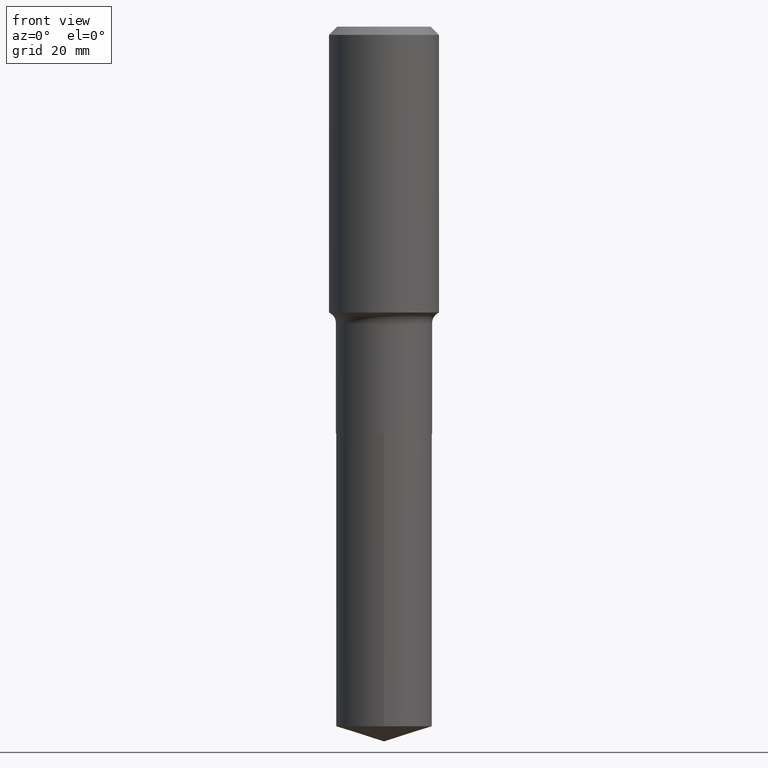
[diagram: clean part render]
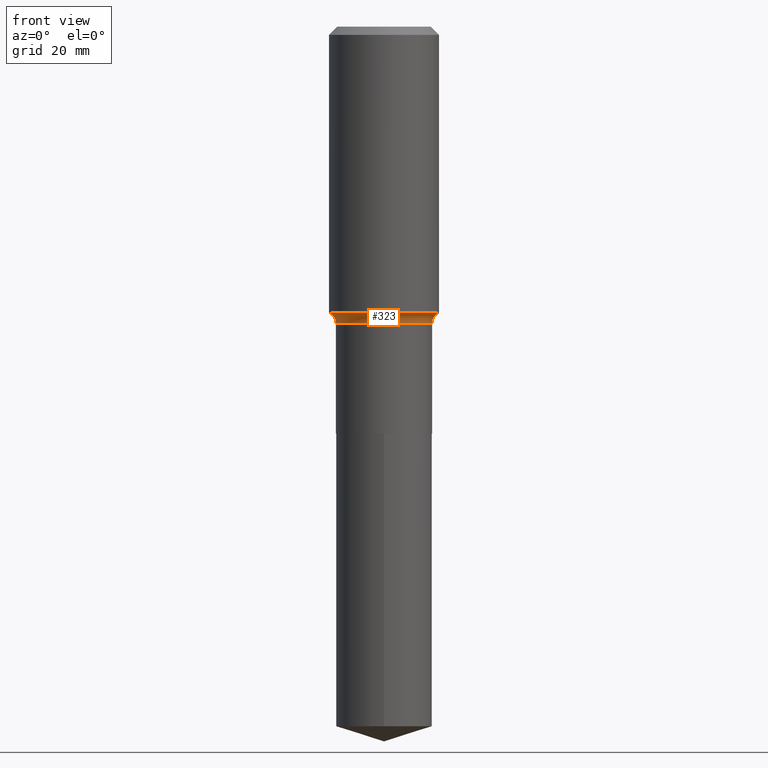
[diagram: same view with one face highlighted and labeled with its STEP entity id]
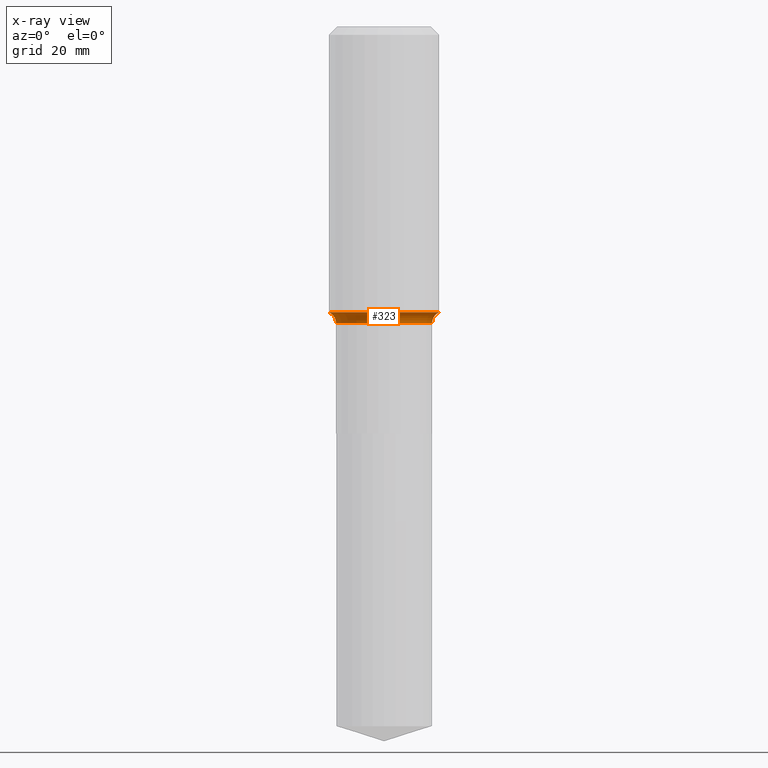
[diagram: x-ray of the same camera — body ghosted, the highlighted face saturated]
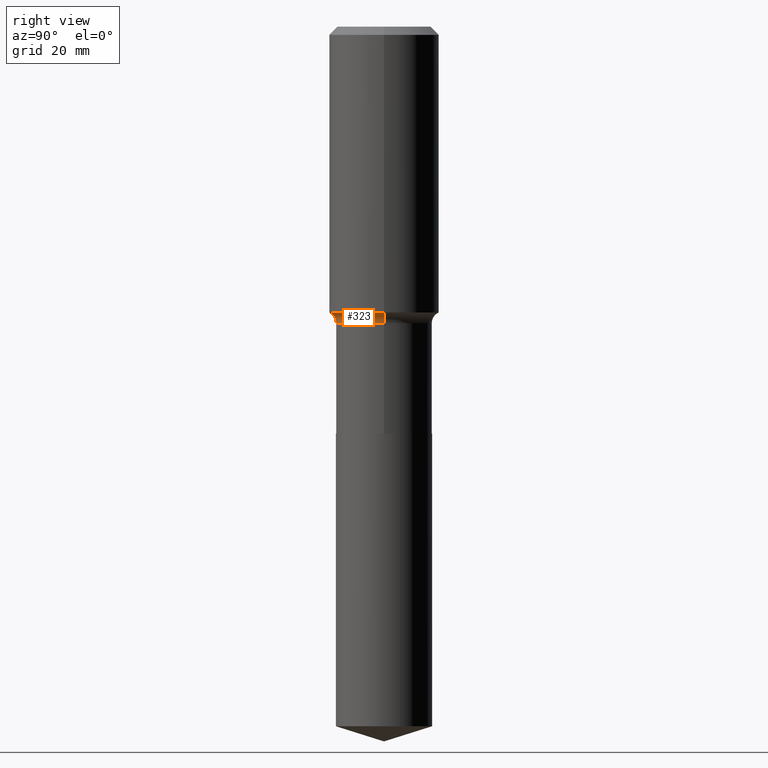
[diagram: same view with one face highlighted and labeled with its STEP entity id]
A machine part, front view. The second image highlights one B-rep face of the part: STEP entity #323.
The next image is the same camera in x-ray: the body ghosted, the highlighted face saturated — about 0% of this face is hidden behind the body in this view.
A second angle (right view) of the same face is appended — the face is thin or edge-on in the first view.
In plain terms, the highlighted toroidal blend (fillet) surface has major radius 10.3149 mm and minor (blend) radius 1.9812 mm.
Its self-contained STEP definition (entity closure, byte-faithful):
#2 = DIRECTION ( 'NONE',  ( -6.982962677686266711E-15, -1.000000000000000000, 3.491481338843145583E-15 ) ) ;
#7 = FACE_OUTER_BOUND ( 'NONE', #154, .T. ) ;
#17 = EDGE_CURVE ( 'NONE', #291, #328, #426, .T. ) ;
#34 = CARTESIAN_POINT ( 'NONE',  ( 4.943759738583870671E-29, -7.058378674605300908E-15, -2.021599999999999397 ) ) ;
#42 = CARTESIAN_POINT ( 'NONE',  ( -0.3750000000000002220, -4.144091675948292406E-15, -1.950068258793734799 ) ) ;
#46 = DIRECTION ( 'NONE',  ( 1.000000000000000000, -6.982962677686269077E-15, 0.000000000000000000 ) ) ;
#57 = AXIS2_PLACEMENT_3D ( 'NONE', #448, #334, #489 ) ;
#81 = DIRECTION ( 'NONE',  ( 1.000000000000000000, -6.982962677686269077E-15, 0.000000000000000000 ) ) ;
#88 = CARTESIAN_POINT ( 'NONE',  ( 0.4060999999999999610, -9.894159818013693857E-15, -2.021599999999999397 ) ) ;
#93 = AXIS2_PLACEMENT_3D ( 'NONE', #34, #200, #46 ) ;
#141 = CARTESIAN_POINT ( 'NONE',  ( -0.3280999999999998917, -6.043550997387220874E-15, -2.021599999999999397 ) ) ;
#142 = TOROIDAL_SURFACE ( 'NONE', #180, 0.4060999999999999610, 0.07800000000000006928 ) ;
#149 = ORIENTED_EDGE ( 'NONE', *, *, #466, .T. ) ;
#154 = EDGE_LOOP ( 'NONE', ( #160, #331, #149, #231 ) ) ;
#160 = ORIENTED_EDGE ( 'NONE', *, *, #376, .F. ) ;
#169 = CARTESIAN_POINT ( 'NONE',  ( 0.3750000000000002220, -9.427237939181022852E-15, -1.950068258793734799 ) ) ;
#170 = CIRCLE ( 'NONE', #93, 0.3280999999999998917 ) ;
#171 = DIRECTION ( 'NONE',  ( 1.000000000000000000, -6.982962677686274599E-15, 0.000000000000000000 ) ) ;
#180 = AXIS2_PLACEMENT_3D ( 'NONE', #303, #459, #270 ) ;
#200 = DIRECTION ( 'NONE',  ( -2.445468806185136597E-29, 3.491481338843145583E-15, 1.000000000000000000 ) ) ;
#217 = CIRCLE ( 'NONE', #391, 0.3750000000000002220 ) ;
#231 = ORIENTED_EDGE ( 'NONE', *, *, #17, .F. ) ;
#270 = DIRECTION ( 'NONE',  ( 1.000000000000000000, -6.982962677686267499E-15, 4.883557194083112901E-29 ) ) ;
#272 = CARTESIAN_POINT ( 'NONE',  ( 4.768831096811842640E-29, -6.808626935048671258E-15, -1.950068258793734799 ) ) ;
#291 = VERTEX_POINT ( 'NONE', #169 ) ;
#303 = CARTESIAN_POINT ( 'NONE',  ( 4.943759738583870671E-29, -7.058378674605300908E-15, -2.021599999999999397 ) ) ;
#321 = VERTEX_POINT ( 'NONE', #42 ) ;
#323 = ADVANCED_FACE ( 'NONE', ( #7 ), #142, .F. ) ;
#328 = VERTEX_POINT ( 'NONE', #340 ) ;
#331 = ORIENTED_EDGE ( 'NONE', *, *, #394, .T. ) ;
#334 = DIRECTION ( 'NONE',  ( 7.105427357601001859E-15, 1.000000000000000000, -3.491481338843145583E-15 ) ) ;
#340 = CARTESIAN_POINT ( 'NONE',  ( 0.3280999999999998917, -9.349488729154165811E-15, -2.021599999999999397 ) ) ;
#363 = AXIS2_PLACEMENT_3D ( 'NONE', #88, #2, #171 ) ;
#376 = EDGE_CURVE ( 'NONE', #321, #291, #217, .T. ) ;
#384 = CIRCLE ( 'NONE', #57, 0.07800000000000009703 ) ;
#391 = AXIS2_PLACEMENT_3D ( 'NONE', #272, #451, #81 ) ;
#394 = EDGE_CURVE ( 'NONE', #321, #450, #384, .T. ) ;
#426 = CIRCLE ( 'NONE', #363, 0.07800000000000009703 ) ;
#448 = CARTESIAN_POINT ( 'NONE',  ( -0.4060999999999999610, -4.172864624683534725E-15, -2.021599999999999397 ) ) ;
#450 = VERTEX_POINT ( 'NONE', #141 ) ;
#451 = DIRECTION ( 'NONE',  ( -2.445468806185136597E-29, 3.491481338843145583E-15, 1.000000000000000000 ) ) ;
#459 = DIRECTION ( 'NONE',  ( -2.445468806185136597E-29, 3.491481338843145583E-15, 1.000000000000000000 ) ) ;
#466 = EDGE_CURVE ( 'NONE', #450, #328, #170, .T. ) ;
#489 = DIRECTION ( 'NONE',  ( -1.000000000000000000, 7.105427357601001859E-15, 0.000000000000000000 ) ) ;